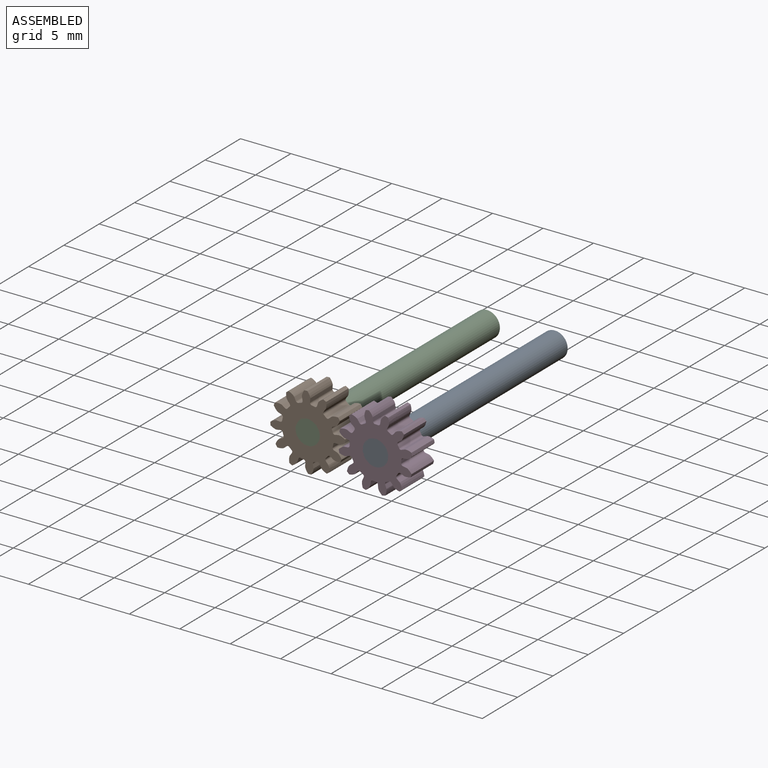
[diagram: assembled view]
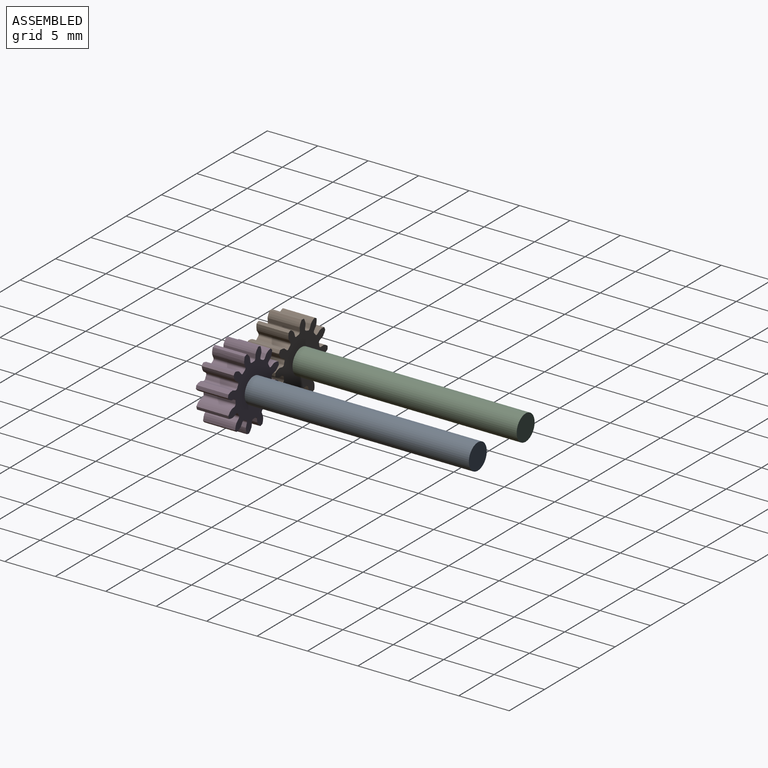
[diagram: assembled view, second angle]
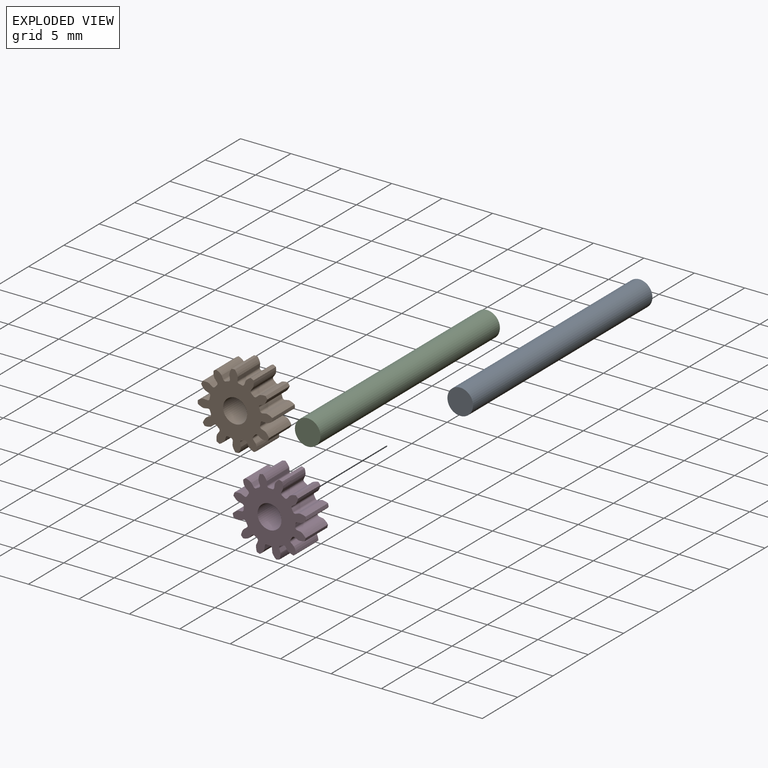
[diagram: exploded view]
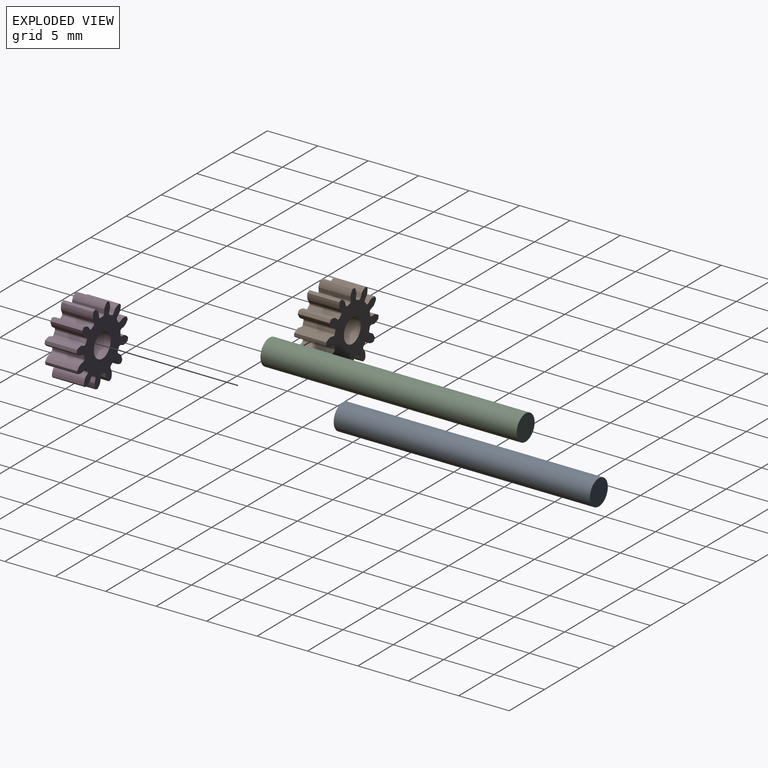
[diagram: exploded view, second angle]
ASSEMBLY  parts=4 mates=2
PART A: 3 faces, bbox 2.5x25.4x2.5 mm
  f0: cylinder r=1.27mm len=25.4mm, axis (0,1,0), area 202.7mm2, adj f1,f2
  f1: plane 2.54x2.54mm, normal (0,-1,0), area 5.1mm2, adj f0
  f2: plane 2.54x2.54mm, normal (0,1,0), area 5.1mm2, adj f0
PART B: 99 faces, bbox 7.4x3.2x7.4 mm
  f0: cylinder r=2.56mm len=3.18mm, axis (0,1,0), area 0.9mm2, adj f1,f10,f95,f96
  f1: cylinder r=0.2mm len=3.18mm, axis (0,1,0), area 1mm2, adj f0,f7,f95,f96
  f2: cylinder r=0.2mm len=3.18mm, axis (0,1,0), area 1mm2, adj f3,f89,f95,f96
  f3: plane 3.18x0.33mm, normal (0.87,0,0.5), area 1.2mm2, adj f2,f4,f95,f96
  f4: extruded ~3.18x0.56mm, area 2.1mm2, adj f3,f5,f95,f96
  f5: cylinder r=3.7mm len=3.18mm, axis (0,1,0), area 1mm2, adj f4,f6,f95,f96
  f6: extruded ~3.18x0.63mm, area 2.1mm2, adj f5,f7,f95,f96
  f7: plane 3.18x0.27mm, normal (-0.7,0,-0.71), area 1.2mm2, adj f1,f6,f95,f96
  f8: cylinder r=2.56mm len=3.18mm, axis (0,1,0), area 0.9mm2, adj f9,f18,f95,f96
  f9: cylinder r=0.2mm len=3.18mm, axis (0,1,0), area 1mm2, adj f8,f15,f95,f96
  f10: cylinder r=0.2mm len=3.18mm, axis (0,1,0), area 1mm2, adj f0,f11,f95,f96
  f11: plane 3.18x0.33mm, normal (0.5,0,0.86), area 1.2mm2, adj f10,f12,f95,f96
  f12: extruded ~3.18x0.64mm, area 2.1mm2, adj f11,f13,f95,f96
  f13: cylinder r=3.7mm len=3.18mm, axis (0,1,0), area 1mm2, adj f12,f14,f95,f96
  f14: extruded ~3.18x0.47mm, area 2.1mm2, adj f13,f15,f95,f96
  f15: plane 3.18x0.37mm, normal (-0.26,0,-0.97), area 1.2mm2, adj f9,f14,f95,f96
  f16: cylinder r=2.56mm len=3.18mm, axis (0,1,0), area 0.9mm2, adj f17,f26,f95,f96
  f17: cylinder r=0.2mm len=3.18mm, axis (0,1,0), area 1mm2, adj f16,f23,f95,f96
  f18: cylinder r=0.2mm len=3.18mm, axis (0,1,0), area 1mm2, adj f8,f19,f95,f96
  f19: plane 3.18x0.38mm, normal (0,0,1), area 1.2mm2, adj f18,f20,f95,f96
  f20: extruded ~3.18x0.55mm, area 2.1mm2, adj f19,f21,f95,f96
  f21: cylinder r=3.7mm len=3.18mm, axis (0,1,0), area 1mm2, adj f20,f22,f95,f96
  f22: extruded ~3.18x0.62mm, area 2.1mm2, adj f21,f23,f95,f96
  f23: plane 3.18x0.37mm, normal (0.26,0,-0.97), area 1.2mm2, adj f17,f22,f95,f96
  f24: cylinder r=2.56mm len=3.18mm, axis (0,1,0), area 0.9mm2, adj f25,f34,f95,f96
  f25: cylinder r=0.2mm len=3.18mm, axis (0,1,0), area 1mm2, adj f24,f31,f95,f96
  f26: cylinder r=0.2mm len=3.18mm, axis (0,1,0), area 1mm2, adj f16,f27,f95,f96
  f27: plane 3.18x0.33mm, normal (-0.5,0,0.87), area 1.2mm2, adj f26,f28,f95,f96
  f28: extruded ~3.18x0.56mm, area 2.1mm2, adj f27,f29,f95,f96
  f29: cylinder r=3.7mm len=3.18mm, axis (0,1,0), area 1mm2, adj f28,f30,f95,f96
  f30: extruded ~3.18x0.63mm, area 2.1mm2, adj f29,f31,f95,f96
  f31: plane 3.18x0.27mm, normal (0.71,0,-0.7), area 1.2mm2, adj f25,f30,f95,f96
  f32: cylinder r=2.56mm len=3.18mm, axis (0,1,0), area 0.9mm2, adj f33,f42,f95,f96
  f33: cylinder r=0.2mm len=3.18mm, axis (0,1,0), area 1mm2, adj f32,f39,f95,f96
  f34: cylinder r=0.2mm len=3.18mm, axis (0,1,0), area 1mm2, adj f24,f35,f95,f96
  f35: plane 3.18x0.33mm, normal (-0.86,0,0.5), area 1.2mm2, adj f34,f36,f95,f96
  f36: extruded ~3.18x0.64mm, area 2.1mm2, adj f35,f37,f95,f96
  f37: cylinder r=3.7mm len=3.18mm, axis (0,1,0), area 1mm2, adj f36,f38,f95,f96
  f38: extruded ~3.18x0.47mm, area 2.1mm2, adj f37,f39,f95,f96
  f39: plane 3.18x0.37mm, normal (0.97,0,-0.26), area 1.2mm2, adj f33,f38,f95,f96
  f40: cylinder r=2.56mm len=3.18mm, axis (0,1,0), area 0.9mm2, adj f41,f50,f95,f96
  f41: cylinder r=0.2mm len=3.18mm, axis (0,1,0), area 1mm2, adj f40,f47,f95,f96
  f42: cylinder r=0.2mm len=3.18mm, axis (0,1,0), area 1mm2, adj f32,f43,f95,f96
  f43: plane 3.18x0.38mm, normal (-1,0,0), area 1.2mm2, adj f42,f44,f95,f96
  f44: extruded ~3.18x0.55mm, area 2.1mm2, adj f43,f45,f95,f96
  f45: cylinder r=3.7mm len=3.18mm, axis (0,1,0), area 1mm2, adj f44,f46,f95,f96
  f46: extruded ~3.18x0.62mm, area 2.1mm2, adj f45,f47,f95,f96
  f47: plane 3.18x0.37mm, normal (0.97,0,0.26), area 1.2mm2, adj f41,f46,f95,f96
  f48: cylinder r=2.56mm len=3.18mm, axis (0,1,0), area 0.9mm2, adj f49,f58,f95,f96
  f49: cylinder r=0.2mm len=3.18mm, axis (0,1,0), area 1mm2, adj f48,f55,f95,f96
  f50: cylinder r=0.2mm len=3.18mm, axis (0,1,0), area 1mm2, adj f40,f51,f95,f96
  f51: plane 3.18x0.33mm, normal (-0.87,0,-0.5), area 1.2mm2, adj f50,f52,f95,f96
  f52: extruded ~3.18x0.56mm, area 2.1mm2, adj f51,f53,f95,f96
  f53: cylinder r=3.7mm len=3.18mm, axis (0,1,0), area 1mm2, adj f52,f54,f95,f96
  f54: extruded ~3.18x0.63mm, area 2.1mm2, adj f53,f55,f95,f96
  f55: plane 3.18x0.27mm, normal (0.7,0,0.71), area 1.2mm2, adj f49,f54,f95,f96
  f56: cylinder r=2.56mm len=3.18mm, axis (0,1,0), area 0.9mm2, adj f57,f66,f95,f96
  f57: cylinder r=0.2mm len=3.18mm, axis (0,1,0), area 1mm2, adj f56,f63,f95,f96
  f58: cylinder r=0.2mm len=3.18mm, axis (0,1,0), area 1mm2, adj f48,f59,f95,f96
  f59: plane 3.18x0.33mm, normal (-0.5,0,-0.86), area 1.2mm2, adj f58,f60,f95,f96
  f60: extruded ~3.18x0.64mm, area 2.1mm2, adj f59,f61,f95,f96
  f61: cylinder r=3.7mm len=3.18mm, axis (0,1,0), area 1mm2, adj f60,f62,f95,f96
  f62: extruded ~3.18x0.47mm, area 2.1mm2, adj f61,f63,f95,f96
  f63: plane 3.18x0.37mm, normal (0.26,0,0.97), area 1.2mm2, adj f57,f62,f95,f96
  f64: cylinder r=2.56mm len=3.18mm, axis (0,1,0), area 0.9mm2, adj f65,f74,f95,f96
  f65: cylinder r=0.2mm len=3.18mm, axis (0,1,0), area 1mm2, adj f64,f71,f95,f96
  f66: cylinder r=0.2mm len=3.18mm, axis (0,1,0), area 1mm2, adj f56,f67,f95,f96
  f67: plane 3.18x0.38mm, normal (0,0,-1), area 1.2mm2, adj f66,f68,f95,f96
  f68: extruded ~3.18x0.55mm, area 2.1mm2, adj f67,f69,f95,f96
  f69: cylinder r=3.7mm len=3.18mm, axis (0,1,0), area 1mm2, adj f68,f70,f95,f96
  f70: extruded ~3.18x0.62mm, area 2.1mm2, adj f69,f71,f95,f96
  f71: plane 3.18x0.37mm, normal (-0.26,0,0.97), area 1.2mm2, adj f65,f70,f95,f96
  f72: cylinder r=2.56mm len=3.18mm, axis (0,1,0), area 0.9mm2, adj f73,f82,f95,f96
  f73: cylinder r=0.2mm len=3.18mm, axis (0,1,0), area 1mm2, adj f72,f79,f95,f96
  f74: cylinder r=0.2mm len=3.18mm, axis (0,1,0), area 1mm2, adj f64,f75,f95,f96
  f75: plane 3.18x0.33mm, normal (0.5,0,-0.87), area 1.2mm2, adj f74,f76,f95,f96
  f76: extruded ~3.18x0.56mm, area 2.1mm2, adj f75,f77,f95,f96
  f77: cylinder r=3.7mm len=3.18mm, axis (0,1,0), area 1mm2, adj f76,f78,f95,f96
  f78: extruded ~3.18x0.63mm, area 2.1mm2, adj f77,f79,f95,f96
  f79: plane 3.18x0.27mm, normal (-0.71,0,0.7), area 1.2mm2, adj f73,f78,f95,f96
  f80: cylinder r=2.56mm len=3.18mm, axis (0,1,0), area 0.9mm2, adj f81,f95,f96,f97
  f81: cylinder r=0.2mm len=3.18mm, axis (0,1,0), area 1mm2, adj f80,f87,f95,f96
  f82: cylinder r=0.2mm len=3.18mm, axis (0,1,0), area 1mm2, adj f72,f83,f95,f96
  f83: plane 3.18x0.33mm, normal (0.86,0,-0.5), area 1.2mm2, adj f82,f84,f95,f96
  f84: extruded ~3.18x0.64mm, area 2.1mm2, adj f83,f85,f95,f96
  f85: cylinder r=3.7mm len=3.18mm, axis (0,1,0), area 1mm2, adj f84,f86,f95,f96
  f86: extruded ~3.18x0.47mm, area 2.1mm2, adj f85,f87,f95,f96
  f87: plane 3.18x0.37mm, normal (-0.97,0,0.26), area 1.2mm2, adj f81,f86,f95,f96
  f88: plane 3.18x0.37mm, normal (-0.97,0,-0.26), area 1.2mm2, adj f93,f95,f96,f98
  f89: cylinder r=2.56mm len=3.18mm, axis (0,1,0), area 0.9mm2, adj f2,f95,f96,f98
  f90: plane 3.18x0.38mm, normal (1,0,0), area 1.2mm2, adj f91,f95,f96,f97
  f91: extruded ~3.18x0.55mm, area 2.1mm2, adj f90,f92,f95,f96
  f92: cylinder r=3.7mm len=3.18mm, axis (0,1,0), area 1mm2, adj f91,f93,f95,f96
  f93: extruded ~3.18x0.62mm, area 2.1mm2, adj f88,f92,f95,f96
  f94: cylinder r=1.19mm len=3.18mm, axis (0,1,0), area 23.8mm2, adj f95,f96
  f95: plane 7.38x7.38mm, normal (0,-1,0), area 26mm2, adj f0,f1,f2,f3,f4,f5,f6,f7
  f96: plane 7.38x7.38mm, normal (0,1,0), area 26mm2, adj f0,f1,f2,f3,f4,f5,f6,f7
  f97: cylinder r=0.2mm len=3.18mm, axis (0,1,0), area 1mm2, adj f80,f90,f95,f96
  f98: cylinder r=0.2mm len=3.18mm, axis (0,1,0), area 1mm2, adj f88,f89,f95,f96
PART C: same geometry as A
PART D: same geometry as B
PLACE A t=(6.73,-0.03,-0.02)mm fixed
PLACE B rot(axis=(0,1,0),154.6deg) t=(26.96,-22.22,49.28)mm
PLACE C at identity fixed
PLACE D rot(axis=(0,1,0),114.8deg) t=(33.7,-22.25,49.26)mm
MATE revolute D.f0 <-> A.f0  axis (0,-1,0) through (33.7,-25.43,49.26)mm
MATE revolute B.f0 <-> C.f0  axis (0,-1,0) through (26.96,-25.4,49.28)mm
